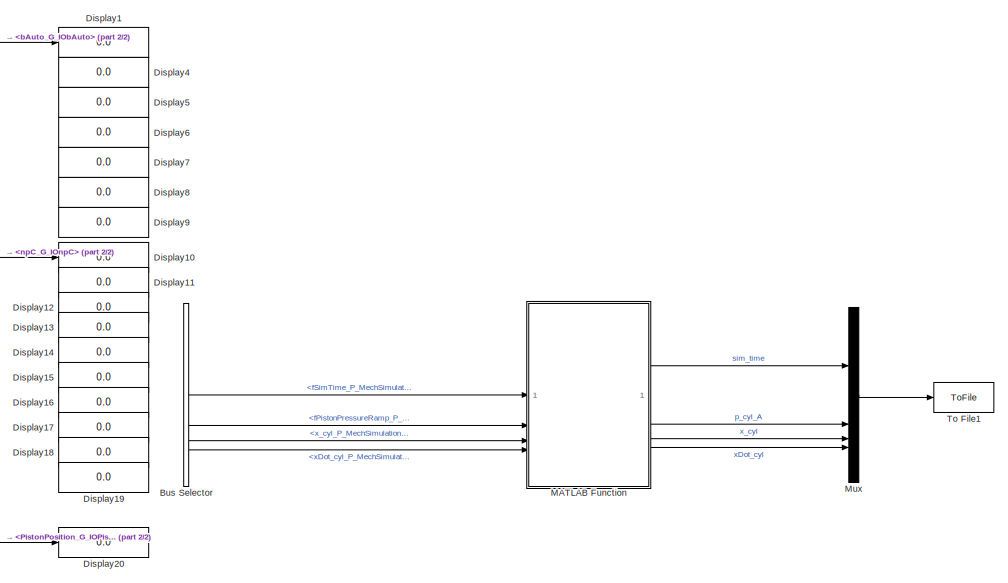
[diagram: root canvas - part 1/2, right side, full height]
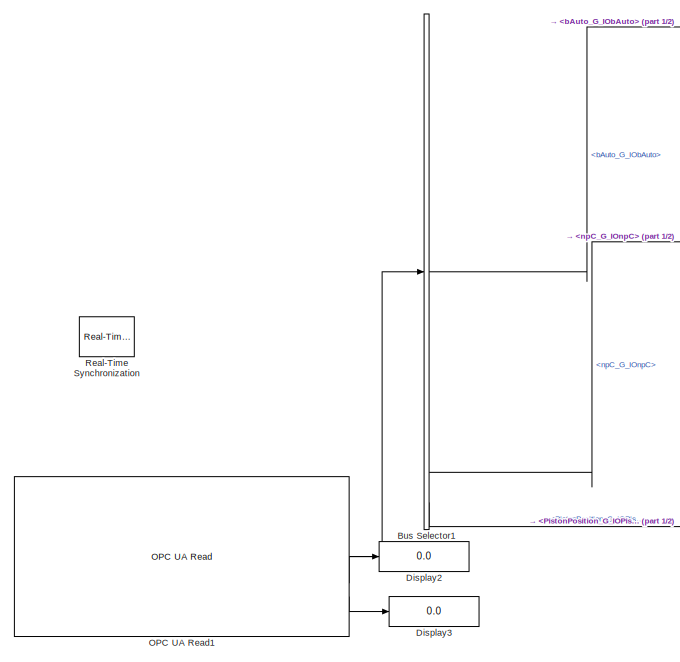
[diagram: root canvas - part 2/2, left side, full height]
MODEL slx_783572773ff4
KIND model
CONFIG AbsTol = auto
CONFIG EnableMultiTasking = off
CONFIG FixedStep = 0.01
CONFIG MaxStep = 0.001
CONFIG MinStep = auto
CONFIG RelTol = 1e-3
CONFIG SampleTimeConstraint = Unconstrained
CONFIG SolverName = FixedStepDiscrete
CONFIG StartTime = 0.0
CONFIG StopTime = inf
BLOCK [BusSelector] Bus Selector
  Commented = on
  OutputSignals = fSimTime_P_MechSimulationfSimTime,fPistonPressureRamp_P_MechSimulationfPistonPressureRamp,x_cyl_P_MechSimulationx_cyl,xDot_cyl_P_MechSimulationxDot_cyl
BLOCK [BusSelector] Bus Selector1
  OutputSignals = bAuto_G_IObAuto,bManual_G_IObManual,bStart_G_IObStart,bStop_G_IObStop,nJoyY_G_IOnJoyY,npS_G_IOnpS,npR_G_IOnpR,npC_G_IOnpC,npp_G_IOnpp,npA_G_IOnpA,npr2_G_IOnpr2,nQr_G_IOnQr,bGreenLed_G_IObGreenLed,bRedLed_G_IObRedLed,bEnableValve_G_IObEnableValve,nValveOutput_G_IOnValveOutput,nXcyl_G_IOnXcyl,PistonPosition_G_IOPistonPosition
BLOCK [Display] Display1
  Decimation = 1
BLOCK [Display] Display10
  Decimation = 1
BLOCK [Display] Display11
  Decimation = 1
BLOCK [Display] Display12
  Decimation = 1
BLOCK [Display] Display13
  Decimation = 1
BLOCK [Display] Display14
  Decimation = 1
BLOCK [Display] Display15
  Decimation = 1
BLOCK [Display] Display16
  Decimation = 1
BLOCK [Display] Display17
  Decimation = 1
BLOCK [Display] Display18
  Decimation = 1
BLOCK [Display] Display19
  Decimation = 1
BLOCK [Display] Display2
  Decimation = 1
BLOCK [Display] Display20
  Decimation = 1
BLOCK [Display] Display3
  Decimation = 1
BLOCK [Display] Display4
  Decimation = 1
BLOCK [Display] Display5
  Decimation = 1
BLOCK [Display] Display6
  Decimation = 1
BLOCK [Display] Display7
  Decimation = 1
BLOCK [Display] Display8
  Decimation = 1
BLOCK [Display] Display9
  Decimation = 1
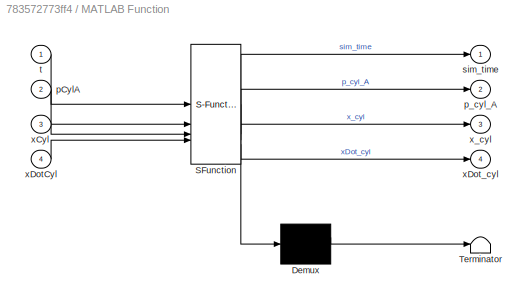
BLOCK [SubSystem] MATLAB Function
  Commented = on
  ErrorFcn = Stateflow.Translate.translate
  PermitHierarchicalResolution = ExplicitOnly
  SFBlockType = MATLAB Function
  TreatAsAtomicUnit = on
BLOCK [Demux] MATLAB Function/ Demux 
  Outputs = 1
BLOCK [S-Function] MATLAB Function/ SFunction 
  EnableBusSupport = on
  FunctionName = sf_sfun
  PortCounts = [4 5]
  SFcnIsStateOwnerBlock = off
  SFunctionDeploymentMode = off
  Tag = Stateflow S-Function 2
BLOCK [Terminator] MATLAB Function/ Terminator 
BLOCK [Inport] MATLAB Function/pCylA
  Port = 2
BLOCK [Outport] MATLAB Function/p_cyl_A
  Port = 2
BLOCK [Outport] MATLAB Function/sim_time
BLOCK [Inport] MATLAB Function/t
BLOCK [Inport] MATLAB Function/xCyl
  Port = 3
BLOCK [Inport] MATLAB Function/xDotCyl
  Port = 4
BLOCK [Outport] MATLAB Function/xDot_cyl
  Port = 4
BLOCK [Outport] MATLAB Function/x_cyl
  Port = 3
BLOCK [Mux] Mux
  Commented = on
  DisplayOption = bar
BLOCK [Reference] OPC UA Read1  REF=opcualib/OPC UA Read
  SourceBlock = opcualib/OPC UA Read
  SourceType = opcUARead
BLOCK [Reference] Real-Time Synchronization  REF=sldrtlib/Real-Time
Synchronization
  SourceBlock = sldrtlib/Real-Time\nSynchronization
  SourceType = Simulink Desktop Real-Time Synchronization
BLOCK [ToFile] To File1
  Commented = on
  Filename = MechData.mat
  SaveFormat = Timeseries
LINE Bus Selector1:1 -> Display1:1
LINE Bus Selector1:18 -> Display20:1
LINE Bus Selector1:8 -> Display10:1
LINE Bus Selector:1 -> MATLAB Function:1
LINE Bus Selector:2 -> MATLAB Function:2
LINE Bus Selector:3 -> MATLAB Function:3
LINE Bus Selector:4 -> MATLAB Function:4
LINE MATLAB Function:1 -> Mux:1
LINE MATLAB Function:2 -> Mux:2
LINE MATLAB Function:3 -> Mux:3
LINE MATLAB Function:4 -> Mux:4
LINE Mux:1 -> To File1:1
LINE OPC UA Read1:1 -> Bus Selector1:1
LINE OPC UA Read1:2 -> Display2:1
LINE OPC UA Read1:3 -> Display3:1
CHART MATLAB Function states=1 transitions=1
  STATE_LABEL 'eML_blk_kernel()'
  STATE_LABEL 'SCRIPT:\nfunction [sim_time, p_cyl_A, x_cyl, xDot_cyl]   = fcn(t, pCylA, xCyl, xDotCyl)\nif t >= 0.0 && t < 10.0\n     sim_time = t;\n     p_cyl_A = pCylA;\n     x_cyl = xCyl;\n     xDot_cyl = xDotCyl;\nelseif t >= 10.0\n     sim_time = 10.0;\n     p_cyl_A = pCylA;\n     x_cyl = xCyl;\n     xDot_cyl = xDotCyl;\nelse\n     sim_time = 0.0;\n     p_cyl_A = 0.0;\n     x_cyl = 0.0;\n     xDot_cyl = 0.0;\nend'
CHART  states=0 transitions=0
